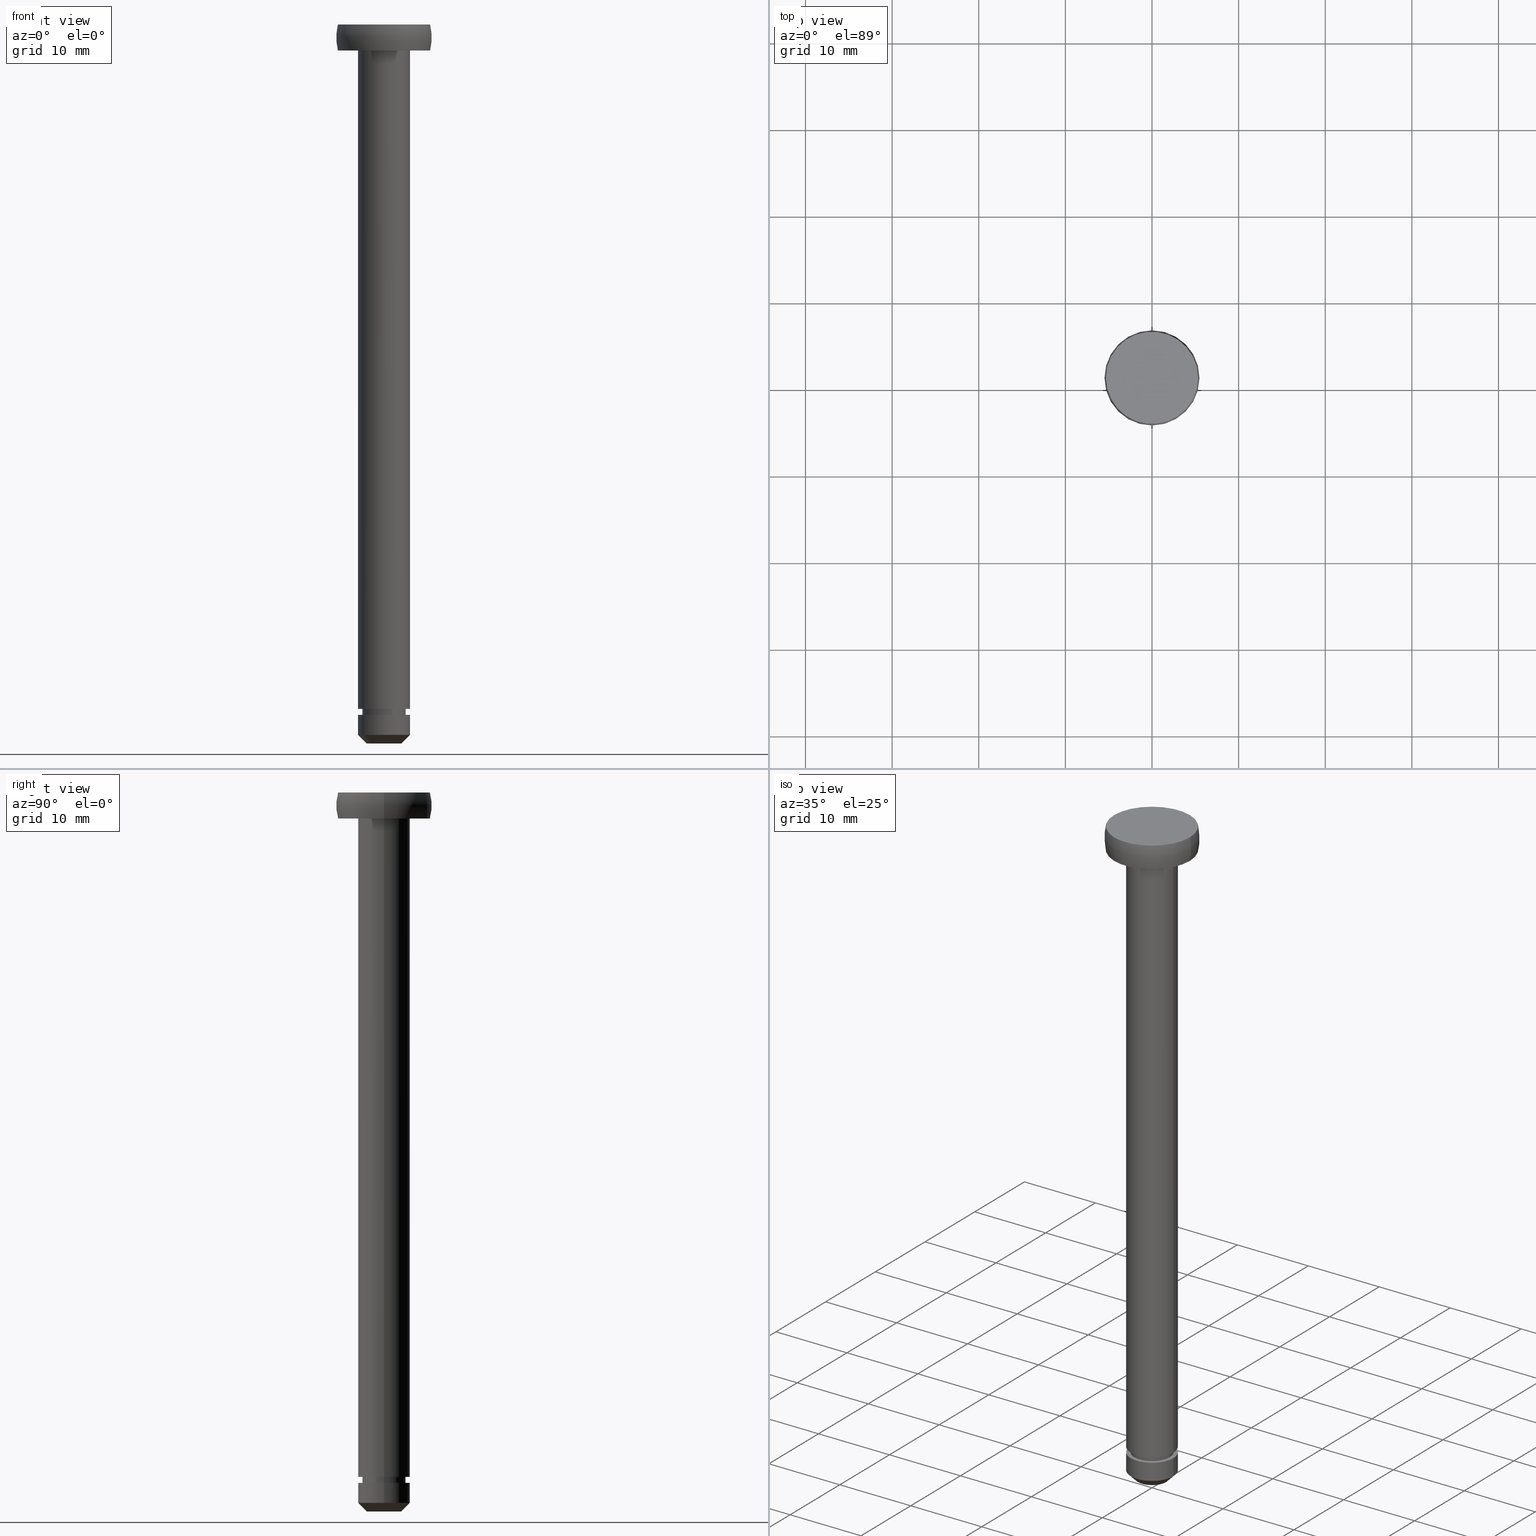
[diagram: canonical four-view strip — front | top / right | iso, engineering-drawing reading convention]
A machine part, canonical four-view strip (front | top / right | iso — engineering-drawing reading convention). The complete STEP part file that produces these views, byte-faithful:
ISO-10303-21;
HEADER;
FILE_DESCRIPTION (( 'STEP AP214' ),
    '1' );
FILE_NAME ('TH_121_6_80.STEP',
    '2016-08-24T01:52:28',
    ( '' ),
    ( '' ),
    'SwSTEP 2.0',
    'SolidWorks 2015',
    '' );
FILE_SCHEMA (( 'AUTOMOTIVE_DESIGN' ));
ENDSEC;

DATA;
#1 = DIRECTION ( 'NONE',  ( 1.000000000000000000, 0.0000000000000000000, 0.0000000000000000000 ) ) ;
#2 = CARTESIAN_POINT ( 'NONE',  ( -5.328427118366801300, 0.0000000000000000000, 83.00000000000000000 ) ) ;
#3 = LINE ( 'NONE', #65, #351 ) ;
#4 = CYLINDRICAL_SURFACE ( 'NONE', #122, 2.500000000000000000 ) ;
#5 = AXIS2_PLACEMENT_3D ( 'NONE', #423, #317, #186 ) ;
#6 = ORIENTED_EDGE ( 'NONE', *, *, #274, .F. ) ;
#7 = FACE_OUTER_BOUND ( 'NONE', #44, .T. ) ;
#8 = AXIS2_PLACEMENT_3D ( 'NONE', #191, #434, #228 ) ;
#9 = EDGE_CURVE ( 'NONE', #392, #364, #277, .T. ) ;
#10 = PRESENTATION_STYLE_ASSIGNMENT (( #363 ) ) ;
#11 = ORIENTED_EDGE ( 'NONE', *, *, #382, .F. ) ;
#12 = COLOUR_RGB ( '',0.7921568627450980000, 0.8196078431372548800, 0.9333333333333333500 ) ;
#13 =( GEOMETRIC_REPRESENTATION_CONTEXT ( 3 ) GLOBAL_UNCERTAINTY_ASSIGNED_CONTEXT ( ( #398 ) ) GLOBAL_UNIT_ASSIGNED_CONTEXT ( ( #159, #198, #79 ) ) REPRESENTATION_CONTEXT ( 'NONE', 'WORKASPACE' ) );
#14 = SURFACE_STYLE_FILL_AREA ( #78 ) ;
#15 = UNCERTAINTY_MEASURE_WITH_UNIT (LENGTH_MEASURE( 1.000000000000000100E-005 ), #323, 'distance_accuracy_value', 'NONE');
#16 = ORIENTED_EDGE ( 'NONE', *, *, #400, .F. ) ;
#17 = ORIENTED_EDGE ( 'NONE', *, *, #282, .T. ) ;
#18 = DIRECTION ( 'NONE',  ( 0.0000000000000000000, 0.0000000000000000000, 1.000000000000000000 ) ) ;
#19 = DIRECTION ( 'NONE',  ( 0.0000000000000000000, 0.0000000000000000000, -1.000000000000000000 ) ) ;
#20 = ADVANCED_FACE ( 'NONE', ( #7 ), #172, .T. ) ;
#21 = VERTEX_POINT ( 'NONE', #397 ) ;
#22 = CIRCLE ( 'NONE', #458, 6.642766791230089400 ) ;
#23 = EDGE_CURVE ( 'NONE', #321, #316, #81, .T. ) ;
#24 = DIRECTION ( 'NONE',  ( 0.0000000000000000000, 0.0000000000000000000, -1.000000000000000000 ) ) ;
#25 = DIRECTION ( 'NONE',  ( -0.0000000000000000000, -0.0000000000000000000, 1.000000000000000000 ) ) ;
#26 = CIRCLE ( 'NONE', #42, 5.328427118366801300 ) ;
#27 = CARTESIAN_POINT ( 'NONE',  ( 0.0000000000000000000, 0.0000000000000000000, 79.99999998195649200 ) ) ;
#28 = DIRECTION ( 'NONE',  ( -1.000000000000000000, -1.224646799147353200E-016, 0.0000000000000000000 ) ) ;
#29 = PRODUCT_CONTEXT ( 'NONE', #291, 'mechanical' ) ;
#30 = VERTEX_POINT ( 'NONE', #120 ) ;
#31 = DIRECTION ( 'NONE',  ( 0.7071067811865456900, 0.0000000000000000000, 0.7071067811865493500 ) ) ;
#32 = EDGE_CURVE ( 'NONE', #91, #162, #205, .T. ) ;
#33 = CARTESIAN_POINT ( 'NONE',  ( 5.328427118366795100, 6.525441214997858000E-016, 79.99999998195649200 ) ) ;
#34 = STYLED_ITEM ( 'NONE', ( #381 ), #437 ) ;
#35 = CARTESIAN_POINT ( 'NONE',  ( -2.500000000000000000, 0.0000000000000000000, 4.000000000000003600 ) ) ;
#36 = DIRECTION ( 'NONE',  ( 0.0000000000000000000, 0.0000000000000000000, -1.000000000000000000 ) ) ;
#37 = CARTESIAN_POINT ( 'NONE',  ( 1.142766791230102100, 0.0000000000000000000, 81.49999999097829600 ) ) ;
#38 = VERTEX_POINT ( 'NONE', #140 ) ;
#39 = DIRECTION ( 'NONE',  ( 0.0000000000000000000, 0.0000000000000000000, -1.000000000000000000 ) ) ;
#40 = LINE ( 'NONE', #215, #304 ) ;
#41 = CARTESIAN_POINT ( 'NONE',  ( 0.0000000000000000000, 0.0000000000000000000, 4.000000000000114600 ) ) ;
#42 = AXIS2_PLACEMENT_3D ( 'NONE', #99, #39, #55 ) ;
#43 = DIRECTION ( 'NONE',  ( -1.000000000000000000, 0.0000000000000000000, -0.0000000000000000000 ) ) ;
#44 = EDGE_LOOP ( 'NONE', ( #386, #388, #340, #204 ) ) ;
#45 = CONTEXT_DEPENDENT_SHAPE_REPRESENTATION ( #71, #128 ) ;
#46 = ORIENTED_EDGE ( 'NONE', *, *, #282, .F. ) ;
#47 = EDGE_LOOP ( 'NONE', ( #96, #242, #376, #188 ) ) ;
#48 = PRODUCT_DEFINITION_SHAPE ( 'NONE', 'NONE',  #278 ) ;
#49 = LINE ( 'NONE', #231, #141 ) ;
#50 =( GEOMETRIC_REPRESENTATION_CONTEXT ( 3 ) GLOBAL_UNCERTAINTY_ASSIGNED_CONTEXT ( ( #417 ) ) GLOBAL_UNIT_ASSIGNED_CONTEXT ( ( #192, #115, #152 ) ) REPRESENTATION_CONTEXT ( 'NONE', 'WORKASPACE' ) );
#51 = SHAPE_DEFINITION_REPRESENTATION ( #275, #266 ) ;
#52 = CIRCLE ( 'NONE', #448, 3.000000000000000000 ) ;
#53 = PRESENTATION_LAYER_ASSIGNMENT (  '', '', ( #34 ) ) ;
#54 = EDGE_LOOP ( 'NONE', ( #443, #442, #306, #365 ) ) ;
#55 = DIRECTION ( 'NONE',  ( -1.000000000000000000, 0.0000000000000000000, 0.0000000000000000000 ) ) ;
#56 = ORIENTED_EDGE ( 'NONE', *, *, #288, .T. ) ;
#57 = VERTEX_POINT ( 'NONE', #216 ) ;
#58 = DIRECTION ( 'NONE',  ( -1.000000000000000000, 0.0000000000000000000, 0.0000000000000000000 ) ) ;
#59 = ADVANCED_FACE ( 'NONE', ( #165, #453 ), #265, .T. ) ;
#60 = DIRECTION ( 'NONE',  ( 0.0000000000000000000, 0.0000000000000000000, -1.000000000000000000 ) ) ;
#61 = CIRCLE ( 'NONE', #143, 3.000000000000000000 ) ;
#62 = PLANE ( 'NONE',  #449 ) ;
#63 = AXIS2_PLACEMENT_3D ( 'NONE', #156, #178, #58 ) ;
#64 = DIRECTION ( 'NONE',  ( 0.0000000000000000000, -0.0000000000000000000, 1.000000000000000000 ) ) ;
#65 = CARTESIAN_POINT ( 'NONE',  ( -3.000000000000000000, 0.0000000000000000000, 83.00000000000000000 ) ) ;
#66 = FACE_OUTER_BOUND ( 'NONE', #355, .T. ) ;
#67 = DIRECTION ( 'NONE',  ( -1.000000000000000000, 0.0000000000000000000, 0.0000000000000000000 ) ) ;
#68 = FILL_AREA_STYLE_COLOUR ( '', #12 ) ;
#69 = VECTOR ( 'NONE', #226, 1000.000000000000000 ) ;
#70 = CONICAL_SURFACE ( 'NONE', #399, 2.000000000000000000, 0.7853981633974457300 ) ;
#71 =( REPRESENTATION_RELATIONSHIP ('NONE','NONE', #266, #410 ) REPRESENTATION_RELATIONSHIP_WITH_TRANSFORMATION ( #329 )SHAPE_REPRESENTATION_RELATIONSHIP( ) );
#72 = EDGE_LOOP ( 'NONE', ( #56, #137 ) ) ;
#73 = VERTEX_POINT ( 'NONE', #346 ) ;
#74 = ORIENTED_EDGE ( 'NONE', *, *, #331, .F. ) ;
#75 = APPLICATION_CONTEXT ( 'automotive_design' ) ;
#76 = DIRECTION ( 'NONE',  ( -1.000000000000000000, 0.0000000000000000000, 0.0000000000000000000 ) ) ;
#77 = CIRCLE ( 'NONE', #305, 2.500000000000000000 ) ;
#78 = FILL_AREA_STYLE ('',( #259 ) ) ;
#79 =( NAMED_UNIT ( * ) SI_UNIT ( $, .STERADIAN. ) SOLID_ANGLE_UNIT ( ) );
#80 = CIRCLE ( 'NONE', #337, 5.328427118366795100 ) ;
#81 = LINE ( 'NONE', #124, #94 ) ;
#82 = EDGE_CURVE ( 'NONE', #316, #255, #154, .T. ) ;
#83 = SURFACE_SIDE_STYLE ('',( #14 ) ) ;
#84 = DIRECTION ( 'NONE',  ( 1.000000000000000000, 0.0000000000000000000, 0.0000000000000000000 ) ) ;
#85 = PLANE ( 'NONE',  #238 ) ;
#86 = CARTESIAN_POINT ( 'NONE',  ( 3.000000000000000000, 0.0000000000000000000, 79.99999998195649200 ) ) ;
#87 = DIRECTION ( 'NONE',  ( -1.000000000000000000, 0.0000000000000000000, 0.0000000000000000000 ) ) ;
#88 = FACE_OUTER_BOUND ( 'NONE', #239, .T. ) ;
#89 = EDGE_LOOP ( 'NONE', ( #342, #168, #108, #135 ) ) ;
#90 = MECHANICAL_DESIGN_GEOMETRIC_PRESENTATION_REPRESENTATION (  '', ( #34 ), #113 ) ;
#91 = VERTEX_POINT ( 'NONE', #183 ) ;
#92 = CIRCLE ( 'NONE', #328, 2.999999999999995600 ) ;
#93 = EDGE_CURVE ( 'NONE', #221, #255, #49, .T. ) ;
#94 = VECTOR ( 'NONE', #218, 1000.000000000000000 ) ;
#95 = AXIS2_PLACEMENT_3D ( 'NONE', #418, #24, #247 ) ;
#96 = ORIENTED_EDGE ( 'NONE', *, *, #32, .F. ) ;
#97 = FACE_OUTER_BOUND ( 'NONE', #89, .T. ) ;
#98 = CARTESIAN_POINT ( 'NONE',  ( -3.000000000000000000, 0.0000000000000000000, 3.299999999999997200 ) ) ;
#99 = CARTESIAN_POINT ( 'NONE',  ( 0.0000000000000000000, 0.0000000000000000000, 83.00000000000000000 ) ) ;
#100 = ADVANCED_FACE ( 'NONE', ( #155 ), #272, .T. ) ;
#101 = DIRECTION ( 'NONE',  ( 1.000000000000000000, 0.0000000000000000000, 0.0000000000000000000 ) ) ;
#102 = EDGE_CURVE ( 'NONE', #162, #57, #409, .T. ) ;
#103 = FACE_OUTER_BOUND ( 'NONE', #110, .T. ) ;
#104 = CARTESIAN_POINT ( 'NONE',  ( 0.0000000000000000000, 0.0000000000000000000, 0.0000000000000000000 ) ) ;
#105 = UNCERTAINTY_MEASURE_WITH_UNIT (LENGTH_MEASURE( 1.000000000000000100E-005 ), #262, 'distance_accuracy_value', 'NONE');
#106 = EDGE_CURVE ( 'NONE', #293, #73, #22, .T. ) ;
#107 = DIRECTION ( 'NONE',  ( 0.0000000000000000000, 0.0000000000000000000, -1.000000000000000000 ) ) ;
#108 = ORIENTED_EDGE ( 'NONE', *, *, #82, .F. ) ;
#109 = DIRECTION ( 'NONE',  ( -1.000000000000000000, 0.0000000000000000000, 0.0000000000000000000 ) ) ;
#110 = EDGE_LOOP ( 'NONE', ( #267, #401, #187, #243 ) ) ;
#111 = DIRECTION ( 'NONE',  ( 0.0000000000000000000, 0.0000000000000000000, -1.000000000000000000 ) ) ;
#112 = DIRECTION ( 'NONE',  ( 0.0000000000000000000, 0.0000000000000000000, -1.000000000000000000 ) ) ;
#113 =( GEOMETRIC_REPRESENTATION_CONTEXT ( 3 ) GLOBAL_UNCERTAINTY_ASSIGNED_CONTEXT ( ( #105 ) ) GLOBAL_UNIT_ASSIGNED_CONTEXT ( ( #262, #345, #121 ) ) REPRESENTATION_CONTEXT ( 'NONE', 'WORKASPACE' ) );
#114 = DIRECTION ( 'NONE',  ( -1.000000000000000000, 0.0000000000000000000, 0.0000000000000000000 ) ) ;
#115 =( NAMED_UNIT ( * ) PLANE_ANGLE_UNIT ( ) SI_UNIT ( $, .RADIAN. ) );
#116 = DIRECTION ( 'NONE',  ( 0.0000000000000000000, 0.0000000000000000000, -1.000000000000000000 ) ) ;
#117 = DIRECTION ( 'NONE',  ( 0.0000000000000000000, 0.0000000000000000000, -1.000000000000000000 ) ) ;
#118 = EDGE_LOOP ( 'NONE', ( #170, #432 ) ) ;
#119 = DIRECTION ( 'NONE',  ( 0.0000000000000000000, -0.0000000000000000000, 1.000000000000000000 ) ) ;
#120 = CARTESIAN_POINT ( 'NONE',  ( 3.000000000000000000, 3.673940397442059900E-016, 4.000000000000114600 ) ) ;
#121 =( NAMED_UNIT ( * ) SI_UNIT ( $, .STERADIAN. ) SOLID_ANGLE_UNIT ( ) );
#122 = AXIS2_PLACEMENT_3D ( 'NONE', #374, #438, #251 ) ;
#123 = COLOUR_RGB ( '',0.7921568627450980000, 0.8196078431372548800, 0.9333333333333333500 ) ;
#124 = CARTESIAN_POINT ( 'NONE',  ( -2.500000000000000000, 0.0000000000000000000, 83.00000000000000000 ) ) ;
#125 = FACE_OUTER_BOUND ( 'NONE', #222, .T. ) ;
#126 = EDGE_LOOP ( 'NONE', ( #219, #130 ) ) ;
#127 = ADVANCED_FACE ( 'NONE', ( #201, #377 ), #261, .T. ) ;
#128 = PRODUCT_DEFINITION_SHAPE ( 'NONE', 'NONE',  #469 ) ;
#129 = EDGE_CURVE ( 'NONE', #73, #270, #80, .T. ) ;
#130 = ORIENTED_EDGE ( 'NONE', *, *, #350, .T. ) ;
#131 = EDGE_CURVE ( 'NONE', #162, #91, #445, .T. ) ;
#132 = DIRECTION ( 'NONE',  ( -1.000000000000000000, 0.0000000000000000000, 0.0000000000000000000 ) ) ;
#133 = AXIS2_PLACEMENT_3D ( 'NONE', #194, #395, #360 ) ;
#134 = DIRECTION ( 'NONE',  ( 0.0000000000000000000, 0.0000000000000000000, -1.000000000000000000 ) ) ;
#135 = ORIENTED_EDGE ( 'NONE', *, *, #23, .F. ) ;
#136 = EDGE_CURVE ( 'NONE', #392, #439, #176, .T. ) ;
#137 = ORIENTED_EDGE ( 'NONE', *, *, #368, .T. ) ;
#138 = ADVANCED_FACE ( 'NONE', ( #271, #66 ), #467, .T. ) ;
#139 = CIRCLE ( 'NONE', #263, 3.000000000000000000 ) ;
#140 = CARTESIAN_POINT ( 'NONE',  ( -3.000000000000000000, 0.0000000000000000000, 4.000000000000114600 ) ) ;
#141 = VECTOR ( 'NONE', #112, 1000.000000000000000 ) ;
#142 = DIRECTION ( 'NONE',  ( 0.0000000000000000000, 0.0000000000000000000, -1.000000000000000000 ) ) ;
#143 = AXIS2_PLACEMENT_3D ( 'NONE', #169, #142, #180 ) ;
#144 = VERTEX_POINT ( 'NONE', #420 ) ;
#145 = VECTOR ( 'NONE', #31, 1000.000000000000000 ) ;
#146 = CARTESIAN_POINT ( 'NONE',  ( 0.0000000000000000000, 0.0000000000000000000, 83.00000000000000000 ) ) ;
#147 = CARTESIAN_POINT ( 'NONE',  ( 0.0000000000000000000, 0.0000000000000000000, 3.299999999999997200 ) ) ;
#148 = DIRECTION ( 'NONE',  ( 0.0000000000000000000, 0.0000000000000000000, -1.000000000000000000 ) ) ;
#149 = DIRECTION ( 'NONE',  ( 0.0000000000000000000, 0.0000000000000000000, -1.000000000000000000 ) ) ;
#150 = CARTESIAN_POINT ( 'NONE',  ( 0.0000000000000000000, 0.0000000000000000000, 83.00000000000000000 ) ) ;
#151 = ORIENTED_EDGE ( 'NONE', *, *, #93, .F. ) ;
#152 =( NAMED_UNIT ( * ) SI_UNIT ( $, .STERADIAN. ) SOLID_ANGLE_UNIT ( ) );
#153 = CARTESIAN_POINT ( 'NONE',  ( 0.0000000000000000000, 0.0000000000000000000, 4.000000000000003600 ) ) ;
#154 = CIRCLE ( 'NONE', #133, 2.500000000000000000 ) ;
#155 = FACE_OUTER_BOUND ( 'NONE', #414, .T. ) ;
#156 = CARTESIAN_POINT ( 'NONE',  ( 0.0000000000000000000, 0.0000000000000000000, 83.00000000000000000 ) ) ;
#157 = DIRECTION ( 'NONE',  ( -1.000000000000000000, 0.0000000000000000000, 0.0000000000000000000 ) ) ;
#158 = EDGE_CURVE ( 'NONE', #21, #270, #447, .T. ) ;
#159 =( LENGTH_UNIT ( ) NAMED_UNIT ( * ) SI_UNIT ( .MILLI., .METRE. ) );
#160 = EDGE_CURVE ( 'NONE', #364, #392, #214, .T. ) ;
#161 = CIRCLE ( 'NONE', #422, 5.328427118366795100 ) ;
#162 = VERTEX_POINT ( 'NONE', #300 ) ;
#163 = ORIENTED_EDGE ( 'NONE', *, *, #303, .T. ) ;
#164 = ORIENTED_EDGE ( 'NONE', *, *, #248, .T. ) ;
#165 = FACE_OUTER_BOUND ( 'NONE', #126, .T. ) ;
#166 = AXIS2_PLACEMENT_3D ( 'NONE', #195, #426, #87 ) ;
#167 = CIRCLE ( 'NONE', #217, 2.500000000000000000 ) ;
#168 = ORIENTED_EDGE ( 'NONE', *, *, #93, .T. ) ;
#169 = CARTESIAN_POINT ( 'NONE',  ( 0.0000000000000000000, 0.0000000000000000000, 79.99999998195649200 ) ) ;
#170 = ORIENTED_EDGE ( 'NONE', *, *, #314, .F. ) ;
#171 = ORIENTED_EDGE ( 'NONE', *, *, #131, .T. ) ;
#172 = TOROIDAL_SURFACE ( 'NONE', #237, -1.142766791230102100, 6.642766791230087600 ) ;
#173 = CARTESIAN_POINT ( 'NONE',  ( -2.500000000000000000, 0.0000000000000000000, 3.299999999999997200 ) ) ;
#174 = ADVANCED_FACE ( 'NONE', ( #264 ), #202, .T. ) ;
#175 = CARTESIAN_POINT ( 'NONE',  ( -2.000000000000000000, 2.449293598294706400E-016, 0.0000000000000000000 ) ) ;
#176 = LINE ( 'NONE', #427, #338 ) ;
#177 = MANIFOLD_SOLID_BREP ( '��]1', #330 ) ;
#178 = DIRECTION ( 'NONE',  ( 0.0000000000000000000, 0.0000000000000000000, -1.000000000000000000 ) ) ;
#179 = DIRECTION ( 'NONE',  ( -1.000000000000000000, 0.0000000000000000000, 0.0000000000000000000 ) ) ;
#180 = DIRECTION ( 'NONE',  ( -1.000000000000000000, 0.0000000000000000000, 0.0000000000000000000 ) ) ;
#181 = DIRECTION ( 'NONE',  ( -1.000000000000000000, 0.0000000000000000000, 0.0000000000000000000 ) ) ;
#182 = DIRECTION ( 'NONE',  ( -1.000000000000000000, 0.0000000000000000000, 0.0000000000000000000 ) ) ;
#183 = CARTESIAN_POINT ( 'NONE',  ( -2.000000000000000000, 3.061616997868380200E-016, 0.0000000000000000000 ) ) ;
#184 =( NAMED_UNIT ( * ) PLANE_ANGLE_UNIT ( ) SI_UNIT ( $, .RADIAN. ) );
#185 = SHAPE_REPRESENTATION_RELATIONSHIP ( 'NONE' , 'NONE' ,  #410, #437 ) ;
#186 = DIRECTION ( 'NONE',  ( -1.000000000000000000, 0.0000000000000000000, 0.0000000000000000000 ) ) ;
#187 = ORIENTED_EDGE ( 'NONE', *, *, #136, .T. ) ;
#188 = ORIENTED_EDGE ( 'NONE', *, *, #102, .F. ) ;
#189 = AXIS2_PLACEMENT_3D ( 'NONE', #289, #357, #101 ) ;
#190 = CARTESIAN_POINT ( 'NONE',  ( 0.0000000000000000000, 0.0000000000000000000, 0.0000000000000000000 ) ) ;
#191 = CARTESIAN_POINT ( 'NONE',  ( 0.0000000000000000000, 0.0000000000000000000, 0.0000000000000000000 ) ) ;
#192 =( LENGTH_UNIT ( ) NAMED_UNIT ( * ) SI_UNIT ( .MILLI., .METRE. ) );
#193 = CARTESIAN_POINT ( 'NONE',  ( 5.328427118366801300, 0.0000000000000000000, 83.00000000000000000 ) ) ;
#194 = CARTESIAN_POINT ( 'NONE',  ( 0.0000000000000000000, 0.0000000000000000000, 3.299999999999997200 ) ) ;
#195 = CARTESIAN_POINT ( 'NONE',  ( 0.0000000000000000000, 0.0000000000000000000, 83.00000000000000000 ) ) ;
#196 = DIRECTION ( 'NONE',  ( 0.0000000000000000000, 0.0000000000000000000, -1.000000000000000000 ) ) ;
#197 = CYLINDRICAL_SURFACE ( 'NONE', #402, 2.500000000000000000 ) ;
#198 =( NAMED_UNIT ( * ) PLANE_ANGLE_UNIT ( ) SI_UNIT ( $, .RADIAN. ) );
#199 = FACE_OUTER_BOUND ( 'NONE', #311, .T. ) ;
#200 = ORIENTED_EDGE ( 'NONE', *, *, #136, .F. ) ;
#201 = FACE_OUTER_BOUND ( 'NONE', #72, .T. ) ;
#202 = CONICAL_SURFACE ( 'NONE', #378, 2.000000000000000000, 0.7853981633974457300 ) ;
#203 = ORIENTED_EDGE ( 'NONE', *, *, #102, .T. ) ;
#204 = ORIENTED_EDGE ( 'NONE', *, *, #350, .F. ) ;
#205 = CIRCLE ( 'NONE', #348, 2.000000000000000000 ) ;
#206 = CARTESIAN_POINT ( 'NONE',  ( 2.500000000000000000, 3.061616997868383100E-016, 3.299999999999997200 ) ) ;
#207 = AXIS2_PLACEMENT_3D ( 'NONE', #230, #18, #372 ) ;
#208 = AXIS2_PLACEMENT_3D ( 'NONE', #86, #60, #43 ) ;
#209 = CARTESIAN_POINT ( 'NONE',  ( -2.999999999999995600, 3.673940397442054400E-016, 1.000000000000000900 ) ) ;
#210 = ADVANCED_FACE ( 'NONE', ( #103 ), #353, .T. ) ;
#211 = DIRECTION ( 'NONE',  ( -1.000000000000000000, 0.0000000000000000000, 0.0000000000000000000 ) ) ;
#212 = ORIENTED_EDGE ( 'NONE', *, *, #368, .F. ) ;
#213 = ADVANCED_FACE ( 'NONE', ( #97 ), #4, .T. ) ;
#214 = CIRCLE ( 'NONE', #359, 3.000000000000000000 ) ;
#215 = CARTESIAN_POINT ( 'NONE',  ( 2.999999999999997800, 3.673940397442057400E-016, 83.00000000000000000 ) ) ;
#216 = CARTESIAN_POINT ( 'NONE',  ( 2.999999999999995600, 0.0000000000000000000, 1.000000000000000900 ) ) ;
#217 = AXIS2_PLACEMENT_3D ( 'NONE', #153, #394, #435 ) ;
#218 = DIRECTION ( 'NONE',  ( 0.0000000000000000000, 0.0000000000000000000, -1.000000000000000000 ) ) ;
#219 = ORIENTED_EDGE ( 'NONE', *, *, #129, .T. ) ;
#220 = CARTESIAN_POINT ( 'NONE',  ( 0.0000000000000000000, 0.0000000000000000000, 81.49999999097829600 ) ) ;
#221 = VERTEX_POINT ( 'NONE', #294 ) ;
#222 = EDGE_LOOP ( 'NONE', ( #171, #256 ) ) ;
#223 = DIRECTION ( 'NONE',  ( -1.000000000000000000, 0.0000000000000000000, 0.0000000000000000000 ) ) ;
#224 = DIRECTION ( 'NONE',  ( -0.7071067811865456900, 8.659560562354910700E-017, 0.7071067811865493500 ) ) ;
#225 = DIRECTION ( 'NONE',  ( -1.000000000000000000, 0.0000000000000000000, 0.0000000000000000000 ) ) ;
#226 = DIRECTION ( 'NONE',  ( 0.0000000000000000000, 0.0000000000000000000, -1.000000000000000000 ) ) ;
#227 = DIRECTION ( 'NONE',  ( 0.0000000000000000000, 0.0000000000000000000, -1.000000000000000000 ) ) ;
#228 = DIRECTION ( 'NONE',  ( 1.000000000000000000, 0.0000000000000000000, 0.0000000000000000000 ) ) ;
#229 = CARTESIAN_POINT ( 'NONE',  ( 0.0000000000000000000, 0.0000000000000000000, 3.299999999999997200 ) ) ;
#230 = CARTESIAN_POINT ( 'NONE',  ( 0.0000000000000000000, 0.0000000000000000000, 0.0000000000000000000 ) ) ;
#231 = CARTESIAN_POINT ( 'NONE',  ( 2.500000000000000000, 3.061616997868383100E-016, 83.00000000000000000 ) ) ;
#232 = DIRECTION ( 'NONE',  ( 0.0000000000000000000, 0.0000000000000000000, -1.000000000000000000 ) ) ;
#233 = ORIENTED_EDGE ( 'NONE', *, *, #106, .F. ) ;
#234 = EDGE_CURVE ( 'NONE', #293, #21, #26, .T. ) ;
#235 =( GEOMETRIC_REPRESENTATION_CONTEXT ( 3 ) GLOBAL_UNCERTAINTY_ASSIGNED_CONTEXT ( ( #15 ) ) GLOBAL_UNIT_ASSIGNED_CONTEXT ( ( #323, #184, #286 ) ) REPRESENTATION_CONTEXT ( 'NONE', 'WORKASPACE' ) );
#236 = ORIENTED_EDGE ( 'NONE', *, *, #158, .T. ) ;
#237 = AXIS2_PLACEMENT_3D ( 'NONE', #385, #196, #362 ) ;
#238 = AXIS2_PLACEMENT_3D ( 'NONE', #193, #119, #307 ) ;
#239 = EDGE_LOOP ( 'NONE', ( #151, #17, #433, #268 ) ) ;
#240 = CARTESIAN_POINT ( 'NONE',  ( 3.000000000000000000, 3.673940397442059900E-016, 3.299999999999997200 ) ) ;
#241 = ORIENTED_EDGE ( 'NONE', *, *, #308, .F. ) ;
#242 = ORIENTED_EDGE ( 'NONE', *, *, #400, .T. ) ;
#243 = ORIENTED_EDGE ( 'NONE', *, *, #371, .F. ) ;
#244 = CARTESIAN_POINT ( 'NONE',  ( 0.0000000000000000000, 0.0000000000000000000, 3.299999999999997200 ) ) ;
#245 = ADVANCED_FACE ( 'NONE', ( #383 ), #406, .T. ) ;
#246 = AXIS2_PLACEMENT_3D ( 'NONE', #220, #287, #76 ) ;
#247 = DIRECTION ( 'NONE',  ( -1.000000000000000000, 0.0000000000000000000, 0.0000000000000000000 ) ) ;
#248 = EDGE_CURVE ( 'NONE', #144, #332, #61, .T. ) ;
#249 = DIRECTION ( 'NONE',  ( -1.224646799147353200E-016, 1.000000000000000000, 0.0000000000000000000 ) ) ;
#250 = CARTESIAN_POINT ( 'NONE',  ( 2.000000000000000000, 0.0000000000000000000, 0.0000000000000000000 ) ) ;
#251 = DIRECTION ( 'NONE',  ( -1.000000000000000000, 0.0000000000000000000, 0.0000000000000000000 ) ) ;
#252 = DIRECTION ( 'NONE',  ( 0.0000000000000000000, 0.0000000000000000000, -1.000000000000000000 ) ) ;
#253 = ORIENTED_EDGE ( 'NONE', *, *, #160, .F. ) ;
#254 = AXIS2_PLACEMENT_3D ( 'NONE', #190, #396, #1 ) ;
#255 = VERTEX_POINT ( 'NONE', #206 ) ;
#256 = ORIENTED_EDGE ( 'NONE', *, *, #32, .T. ) ;
#257 = DIRECTION ( 'NONE',  ( -1.000000000000000000, 0.0000000000000000000, -0.0000000000000000000 ) ) ;
#258 = DIRECTION ( 'NONE',  ( 0.0000000000000000000, 0.0000000000000000000, -1.000000000000000000 ) ) ;
#259 = FILL_AREA_STYLE_COLOUR ( '', #123 ) ;
#260 = EDGE_CURVE ( 'NONE', #332, #38, #3, .T. ) ;
#261 = PLANE ( 'NONE',  #295 ) ;
#262 =( LENGTH_UNIT ( ) NAMED_UNIT ( * ) SI_UNIT ( .MILLI., .METRE. ) );
#263 = AXIS2_PLACEMENT_3D ( 'NONE', #41, #429, #419 ) ;
#264 = FACE_OUTER_BOUND ( 'NONE', #47, .T. ) ;
#265 = PLANE ( 'NONE',  #208 ) ;
#266 = SHAPE_REPRESENTATION ( 'TH_121_6_80', ( #254, #207 ), #235 ) ;
#267 = ORIENTED_EDGE ( 'NONE', *, *, #335, .F. ) ;
#268 = ORIENTED_EDGE ( 'NONE', *, *, #303, .F. ) ;
#269 = ORIENTED_EDGE ( 'NONE', *, *, #9, .T. ) ;
#270 = VERTEX_POINT ( 'NONE', #33 ) ;
#271 = FACE_BOUND ( 'NONE', #276, .T. ) ;
#272 = TOROIDAL_SURFACE ( 'NONE', #246, -1.142766791230102100, 6.642766791230087600 ) ;
#273 = AXIS2_PLACEMENT_3D ( 'NONE', #284, #354, #223 ) ;
#274 = EDGE_CURVE ( 'NONE', #21, #293, #440, .T. ) ;
#275 = PRODUCT_DEFINITION_SHAPE ( 'NONE', 'NONE',  #319 ) ;
#276 = EDGE_LOOP ( 'NONE', ( #327, #163 ) ) ;
#277 = CIRCLE ( 'NONE', #421, 3.000000000000000000 ) ;
#278 = PRODUCT_DEFINITION ( 'UNKNOWN', '', #391, #333 ) ;
#279 = APPLICATION_CONTEXT ( 'automotive_design' ) ;
#280 = ADVANCED_FACE ( 'NONE', ( #199 ), #85, .T. ) ;
#281 = APPLICATION_PROTOCOL_DEFINITION ( 'draft international standard', 'automotive_design', 1998, #279 ) ;
#282 = EDGE_CURVE ( 'NONE', #221, #321, #167, .T. ) ;
#283 = AXIS2_PLACEMENT_3D ( 'NONE', #244, #415, #132 ) ;
#284 = CARTESIAN_POINT ( 'NONE',  ( 0.0000000000000000000, 0.0000000000000000000, 0.0000000000000000000 ) ) ;
#285 = DIRECTION ( 'NONE',  ( 0.0000000000000000000, 0.0000000000000000000, -1.000000000000000000 ) ) ;
#286 =( NAMED_UNIT ( * ) SI_UNIT ( $, .STERADIAN. ) SOLID_ANGLE_UNIT ( ) );
#287 = DIRECTION ( 'NONE',  ( 0.0000000000000000000, 0.0000000000000000000, -1.000000000000000000 ) ) ;
#288 = EDGE_CURVE ( 'NONE', #38, #30, #139, .T. ) ;
#289 = CARTESIAN_POINT ( 'NONE',  ( 0.0000000000000000000, 0.0000000000000000000, 0.0000000000000000000 ) ) ;
#290 = DIRECTION ( 'NONE',  ( -0.0000000000000000000, -1.000000000000000000, -0.0000000000000000000 ) ) ;
#291 = APPLICATION_CONTEXT ( 'automotive_design' ) ;
#292 = SURFACE_STYLE_FILL_AREA ( #380 ) ;
#293 = VERTEX_POINT ( 'NONE', #2 ) ;
#294 = CARTESIAN_POINT ( 'NONE',  ( 2.500000000000000000, 3.061616997868383100E-016, 4.000000000000003600 ) ) ;
#295 = AXIS2_PLACEMENT_3D ( 'NONE', #356, #258, #430 ) ;
#296 = LINE ( 'NONE', #175, #358 ) ;
#297 = PRODUCT_DEFINITION_CONTEXT ( 'detailed design', #279, 'design' ) ;
#298 = APPLICATION_PROTOCOL_DEFINITION ( 'draft international standard', 'automotive_design', 1998, #75 ) ;
#299 = DIRECTION ( 'NONE',  ( -1.000000000000000000, 0.0000000000000000000, 0.0000000000000000000 ) ) ;
#300 = CARTESIAN_POINT ( 'NONE',  ( 2.000000000000000000, 0.0000000000000000000, 0.0000000000000000000 ) ) ;
#301 = ORIENTED_EDGE ( 'NONE', *, *, #260, .T. ) ;
#302 = ORIENTED_EDGE ( 'NONE', *, *, #371, .T. ) ;
#303 = EDGE_CURVE ( 'NONE', #255, #316, #444, .T. ) ;
#304 = VECTOR ( 'NONE', #111, 1000.000000000000000 ) ;
#305 = AXIS2_PLACEMENT_3D ( 'NONE', #361, #232, #299 ) ;
#306 = ORIENTED_EDGE ( 'NONE', *, *, #288, .F. ) ;
#307 = DIRECTION ( 'NONE',  ( 1.000000000000000000, 0.0000000000000000000, 0.0000000000000000000 ) ) ;
#308 = EDGE_CURVE ( 'NONE', #321, #221, #77, .T. ) ;
#309 = DIRECTION ( 'NONE',  ( 1.000000000000000000, 0.0000000000000000000, 0.0000000000000000000 ) ) ;
#310 = ADVANCED_FACE ( 'NONE', ( #322 ), #336, .T. ) ;
#311 = EDGE_LOOP ( 'NONE', ( #408, #6 ) ) ;
#312 = AXIS2_PLACEMENT_3D ( 'NONE', #457, #249, #28 ) ;
#313 = DIRECTION ( 'NONE',  ( 1.000000000000000000, 0.0000000000000000000, 0.0000000000000000000 ) ) ;
#314 = EDGE_CURVE ( 'NONE', #332, #144, #369, .T. ) ;
#315 = DIRECTION ( 'NONE',  ( 0.0000000000000000000, 0.0000000000000000000, -1.000000000000000000 ) ) ;
#316 = VERTEX_POINT ( 'NONE', #173 ) ;
#317 = DIRECTION ( 'NONE',  ( 0.0000000000000000000, 0.0000000000000000000, -1.000000000000000000 ) ) ;
#318 = CARTESIAN_POINT ( 'NONE',  ( 0.0000000000000000000, 0.0000000000000000000, 79.99999998195649200 ) ) ;
#319 = PRODUCT_DEFINITION ( 'UNKNOWN', '', #343, #297 ) ;
#320 = CARTESIAN_POINT ( 'NONE',  ( 0.0000000000000000000, 0.0000000000000000000, 1.000000000000000900 ) ) ;
#321 = VERTEX_POINT ( 'NONE', #35 ) ;
#322 = FACE_OUTER_BOUND ( 'NONE', #407, .T. ) ;
#323 =( LENGTH_UNIT ( ) NAMED_UNIT ( * ) SI_UNIT ( .MILLI., .METRE. ) );
#324 = SURFACE_STYLE_USAGE ( .BOTH. , #83 ) ;
#325 = EDGE_LOOP ( 'NONE', ( #16, #450, #203, #302 ) ) ;
#326 = CARTESIAN_POINT ( 'NONE',  ( 0.0000000000000000000, 0.0000000000000000000, 79.99999998195649200 ) ) ;
#327 = ORIENTED_EDGE ( 'NONE', *, *, #82, .T. ) ;
#328 = AXIS2_PLACEMENT_3D ( 'NONE', #320, #116, #109 ) ;
#329 = ITEM_DEFINED_TRANSFORMATION ( 'NONE', 'NONE', #207,  #8 ) ;
#330 = CLOSED_SHELL ( 'NONE', ( #245, #213, #416, #174, #100, #20, #280, #452, #344, #210, #138, #375, #127, #310, #59 ) ) ;
#331 = EDGE_CURVE ( 'NONE', #439, #57, #92, .T. ) ;
#332 = VERTEX_POINT ( 'NONE', #373 ) ;
#333 = PRODUCT_DEFINITION_CONTEXT ( 'detailed design', #464, 'design' ) ;
#334 = AXIS2_PLACEMENT_3D ( 'NONE', #465, #64, #84 ) ;
#335 = EDGE_CURVE ( 'NONE', #364, #57, #40, .T. ) ;
#336 = CYLINDRICAL_SURFACE ( 'NONE', #370, 3.000000000000000000 ) ;
#337 = AXIS2_PLACEMENT_3D ( 'NONE', #318, #36, #225 ) ;
#338 = VECTOR ( 'NONE', #227, 1000.000000000000000 ) ;
#339 = APPLICATION_PROTOCOL_DEFINITION ( 'draft international standard', 'automotive_design', 1998, #291 ) ;
#340 = ORIENTED_EDGE ( 'NONE', *, *, #106, .T. ) ;
#341 = ORIENTED_EDGE ( 'NONE', *, *, #234, .T. ) ;
#342 = ORIENTED_EDGE ( 'NONE', *, *, #308, .T. ) ;
#343 = PRODUCT_DEFINITION_FORMATION_WITH_SPECIFIED_SOURCE ( 'ANY', '', #441, .NOT_KNOWN. ) ;
#344 = ADVANCED_FACE ( 'NONE', ( #461 ), #70, .T. ) ;
#345 =( NAMED_UNIT ( * ) PLANE_ANGLE_UNIT ( ) SI_UNIT ( $, .RADIAN. ) );
#346 = CARTESIAN_POINT ( 'NONE',  ( -5.328427118366795100, 0.0000000000000000000, 79.99999998195649200 ) ) ;
#347 = SURFACE_SIDE_STYLE ('',( #292 ) ) ;
#348 = AXIS2_PLACEMENT_3D ( 'NONE', #462, #379, #179 ) ;
#349 = AXIS2_PLACEMENT_3D ( 'NONE', #326, #19, #211 ) ;
#350 = EDGE_CURVE ( 'NONE', #270, #73, #161, .T. ) ;
#351 = VECTOR ( 'NONE', #285, 1000.000000000000000 ) ;
#352 = CIRCLE ( 'NONE', #5, 2.999999999999995600 ) ;
#353 = CYLINDRICAL_SURFACE ( 'NONE', #95, 2.999999999999997800 ) ;
#354 = DIRECTION ( 'NONE',  ( 0.0000000000000000000, 0.0000000000000000000, -1.000000000000000000 ) ) ;
#355 = EDGE_LOOP ( 'NONE', ( #389, #253 ) ) ;
#356 = CARTESIAN_POINT ( 'NONE',  ( 2.500000000000000000, 0.0000000000000000000, 4.000000000000057700 ) ) ;
#357 = DIRECTION ( 'NONE',  ( 0.0000000000000000000, 0.0000000000000000000, 1.000000000000000000 ) ) ;
#358 = VECTOR ( 'NONE', #224, 1000.000000000000000 ) ;
#359 = AXIS2_PLACEMENT_3D ( 'NONE', #229, #117, #181 ) ;
#360 = DIRECTION ( 'NONE',  ( -1.000000000000000000, 0.0000000000000000000, 0.0000000000000000000 ) ) ;
#361 = CARTESIAN_POINT ( 'NONE',  ( 0.0000000000000000000, 0.0000000000000000000, 4.000000000000003600 ) ) ;
#362 = DIRECTION ( 'NONE',  ( -1.000000000000000000, 0.0000000000000000000, 0.0000000000000000000 ) ) ;
#363 = SURFACE_STYLE_USAGE ( .BOTH. , #347 ) ;
#364 = VERTEX_POINT ( 'NONE', #240 ) ;
#365 = ORIENTED_EDGE ( 'NONE', *, *, #260, .F. ) ;
#366 = FACE_OUTER_BOUND ( 'NONE', #431, .T. ) ;
#367 = PRODUCT_RELATED_PRODUCT_CATEGORY ( 'part', '', ( #441 ) ) ;
#368 = EDGE_CURVE ( 'NONE', #30, #38, #52, .T. ) ;
#369 = CIRCLE ( 'NONE', #349, 3.000000000000000000 ) ;
#370 = AXIS2_PLACEMENT_3D ( 'NONE', #451, #315, #454 ) ;
#371 = EDGE_CURVE ( 'NONE', #57, #439, #352, .T. ) ;
#372 = DIRECTION ( 'NONE',  ( 1.000000000000000000, 0.0000000000000000000, 0.0000000000000000000 ) ) ;
#373 = CARTESIAN_POINT ( 'NONE',  ( -3.000000000000000000, 0.0000000000000000000, 79.99999998195649200 ) ) ;
#374 = CARTESIAN_POINT ( 'NONE',  ( 0.0000000000000000000, 0.0000000000000000000, 83.00000000000000000 ) ) ;
#375 = ADVANCED_FACE ( 'NONE', ( #88 ), #197, .T. ) ;
#376 = ORIENTED_EDGE ( 'NONE', *, *, #331, .T. ) ;
#377 = FACE_BOUND ( 'NONE', #413, .T. ) ;
#378 = AXIS2_PLACEMENT_3D ( 'NONE', #460, #25, #313 ) ;
#379 = DIRECTION ( 'NONE',  ( 0.0000000000000000000, 0.0000000000000000000, -1.000000000000000000 ) ) ;
#380 = FILL_AREA_STYLE ('',( #68 ) ) ;
#381 = PRESENTATION_STYLE_ASSIGNMENT (( #324 ) ) ;
#382 = EDGE_CURVE ( 'NONE', #144, #30, #446, .T. ) ;
#383 = FACE_OUTER_BOUND ( 'NONE', #54, .T. ) ;
#384 = DIRECTION ( 'NONE',  ( 0.0000000000000000000, 0.0000000000000000000, -1.000000000000000000 ) ) ;
#385 = CARTESIAN_POINT ( 'NONE',  ( 0.0000000000000000000, 0.0000000000000000000, 81.49999999097829600 ) ) ;
#386 = ORIENTED_EDGE ( 'NONE', *, *, #158, .F. ) ;
#387 = APPLICATION_PROTOCOL_DEFINITION ( 'draft international standard', 'automotive_design', 1998, #464 ) ;
#388 = ORIENTED_EDGE ( 'NONE', *, *, #274, .T. ) ;
#389 = ORIENTED_EDGE ( 'NONE', *, *, #9, .F. ) ;
#390 = CARTESIAN_POINT ( 'NONE',  ( 0.0000000000000000000, 0.0000000000000000000, 0.0000000000000000000 ) ) ;
#391 = PRODUCT_DEFINITION_FORMATION_WITH_SPECIFIED_SOURCE ( 'ANY', '', #403, .NOT_KNOWN. ) ;
#392 = VERTEX_POINT ( 'NONE', #98 ) ;
#393 = DIRECTION ( 'NONE',  ( -0.0000000000000000000, -0.0000000000000000000, 1.000000000000000000 ) ) ;
#394 = DIRECTION ( 'NONE',  ( 0.0000000000000000000, 0.0000000000000000000, -1.000000000000000000 ) ) ;
#395 = DIRECTION ( 'NONE',  ( 0.0000000000000000000, 0.0000000000000000000, -1.000000000000000000 ) ) ;
#396 = DIRECTION ( 'NONE',  ( 0.0000000000000000000, 0.0000000000000000000, 1.000000000000000000 ) ) ;
#397 = CARTESIAN_POINT ( 'NONE',  ( 5.328427118366801300, 6.525441214997862000E-016, 83.00000000000000000 ) ) ;
#398 = UNCERTAINTY_MEASURE_WITH_UNIT (LENGTH_MEASURE( 1.000000000000000100E-005 ), #159, 'distance_accuracy_value', 'NONE');
#399 = AXIS2_PLACEMENT_3D ( 'NONE', #104, #393, #309 ) ;
#400 = EDGE_CURVE ( 'NONE', #91, #439, #296, .T. ) ;
#401 = ORIENTED_EDGE ( 'NONE', *, *, #160, .T. ) ;
#402 = AXIS2_PLACEMENT_3D ( 'NONE', #146, #134, #114 ) ;
#403 = PRODUCT ( 'shaft', 'shaft', '', ( #29 ) ) ;
#404 = ORIENTED_EDGE ( 'NONE', *, *, #129, .F. ) ;
#405 = STYLED_ITEM ( 'NONE', ( #10 ), #177 ) ;
#406 = CYLINDRICAL_SURFACE ( 'NONE', #166, 3.000000000000000000 ) ;
#407 = EDGE_LOOP ( 'NONE', ( #11, #164, #301, #212 ) ) ;
#408 = ORIENTED_EDGE ( 'NONE', *, *, #234, .F. ) ;
#409 = LINE ( 'NONE', #250, #145 ) ;
#410 = SHAPE_REPRESENTATION ( 'shaft', ( #8 ), #50 ) ;
#411 = PRODUCT_CONTEXT ( 'NONE', #75, 'mechanical' ) ;
#412 = PRODUCT_RELATED_PRODUCT_CATEGORY ( 'part', '', ( #403 ) ) ;
#413 = EDGE_LOOP ( 'NONE', ( #241, #46 ) ) ;
#414 = EDGE_LOOP ( 'NONE', ( #341, #236, #404, #233 ) ) ;
#415 = DIRECTION ( 'NONE',  ( 0.0000000000000000000, 0.0000000000000000000, -1.000000000000000000 ) ) ;
#416 = ADVANCED_FACE ( 'NONE', ( #366 ), #463, .T. ) ;
#417 = UNCERTAINTY_MEASURE_WITH_UNIT (LENGTH_MEASURE( 1.000000000000000100E-005 ), #192, 'distance_accuracy_value', 'NONE');
#418 = CARTESIAN_POINT ( 'NONE',  ( 0.0000000000000000000, 0.0000000000000000000, 83.00000000000000000 ) ) ;
#419 = DIRECTION ( 'NONE',  ( -1.000000000000000000, 0.0000000000000000000, 0.0000000000000000000 ) ) ;
#420 = CARTESIAN_POINT ( 'NONE',  ( 3.000000000000000000, 3.673940397442059900E-016, 79.99999998195649200 ) ) ;
#421 = AXIS2_PLACEMENT_3D ( 'NONE', #147, #107, #157 ) ;
#422 = AXIS2_PLACEMENT_3D ( 'NONE', #27, #384, #182 ) ;
#423 = CARTESIAN_POINT ( 'NONE',  ( 0.0000000000000000000, 0.0000000000000000000, 1.000000000000000900 ) ) ;
#424 = SHAPE_DEFINITION_REPRESENTATION ( #48, #410 ) ;
#425 = AXIS2_PLACEMENT_3D ( 'NONE', #150, #252, #455 ) ;
#426 = DIRECTION ( 'NONE',  ( 0.0000000000000000000, 0.0000000000000000000, -1.000000000000000000 ) ) ;
#427 = CARTESIAN_POINT ( 'NONE',  ( -2.999999999999997800, 0.0000000000000000000, 83.00000000000000000 ) ) ;
#428 = ORIENTED_EDGE ( 'NONE', *, *, #335, .T. ) ;
#429 = DIRECTION ( 'NONE',  ( 0.0000000000000000000, 0.0000000000000000000, -1.000000000000000000 ) ) ;
#430 = DIRECTION ( 'NONE',  ( -1.000000000000000000, 0.0000000000000000000, -0.0000000000000000000 ) ) ;
#431 = EDGE_LOOP ( 'NONE', ( #269, #428, #74, #200 ) ) ;
#432 = ORIENTED_EDGE ( 'NONE', *, *, #248, .F. ) ;
#433 = ORIENTED_EDGE ( 'NONE', *, *, #23, .T. ) ;
#434 = DIRECTION ( 'NONE',  ( 0.0000000000000000000, 0.0000000000000000000, 1.000000000000000000 ) ) ;
#435 = DIRECTION ( 'NONE',  ( -1.000000000000000000, 0.0000000000000000000, 0.0000000000000000000 ) ) ;
#436 = PRESENTATION_LAYER_ASSIGNMENT (  '', '', ( #405 ) ) ;
#437 = ADVANCED_BREP_SHAPE_REPRESENTATION ( '', ( #177, #8 ), #50 ) ;
#438 = DIRECTION ( 'NONE',  ( 0.0000000000000000000, 0.0000000000000000000, -1.000000000000000000 ) ) ;
#439 = VERTEX_POINT ( 'NONE', #209 ) ;
#440 = CIRCLE ( 'NONE', #63, 5.328427118366801300 ) ;
#441 = PRODUCT ( 'TH_121_6_80', 'TH_121_6_80', '', ( #411 ) ) ;
#442 = ORIENTED_EDGE ( 'NONE', *, *, #382, .T. ) ;
#443 = ORIENTED_EDGE ( 'NONE', *, *, #314, .T. ) ;
#444 = CIRCLE ( 'NONE', #283, 2.500000000000000000 ) ;
#445 = CIRCLE ( 'NONE', #273, 2.000000000000000000 ) ;
#446 = LINE ( 'NONE', #459, #69 ) ;
#447 = CIRCLE ( 'NONE', #312, 6.642766791230087600 ) ;
#448 = AXIS2_PLACEMENT_3D ( 'NONE', #466, #149, #67 ) ;
#449 = AXIS2_PLACEMENT_3D ( 'NONE', #390, #148, #257 ) ;
#450 = ORIENTED_EDGE ( 'NONE', *, *, #131, .F. ) ;
#451 = CARTESIAN_POINT ( 'NONE',  ( 0.0000000000000000000, 0.0000000000000000000, 83.00000000000000000 ) ) ;
#452 = ADVANCED_FACE ( 'NONE', ( #125 ), #62, .T. ) ;
#453 = FACE_BOUND ( 'NONE', #118, .T. ) ;
#454 = DIRECTION ( 'NONE',  ( -1.000000000000000000, 0.0000000000000000000, 0.0000000000000000000 ) ) ;
#455 = DIRECTION ( 'NONE',  ( -1.000000000000000000, 0.0000000000000000000, 0.0000000000000000000 ) ) ;
#456 = MECHANICAL_DESIGN_GEOMETRIC_PRESENTATION_REPRESENTATION (  '', ( #405 ), #13 ) ;
#457 = CARTESIAN_POINT ( 'NONE',  ( -1.142766791230102100, -1.399485693051835900E-016, 81.49999999097829600 ) ) ;
#458 = AXIS2_PLACEMENT_3D ( 'NONE', #37, #290, #468 ) ;
#459 = CARTESIAN_POINT ( 'NONE',  ( 3.000000000000000000, 3.673940397442059900E-016, 83.00000000000000000 ) ) ;
#460 = CARTESIAN_POINT ( 'NONE',  ( 0.0000000000000000000, 0.0000000000000000000, 0.0000000000000000000 ) ) ;
#461 = FACE_OUTER_BOUND ( 'NONE', #325, .T. ) ;
#462 = CARTESIAN_POINT ( 'NONE',  ( 0.0000000000000000000, 0.0000000000000000000, 0.0000000000000000000 ) ) ;
#463 = CYLINDRICAL_SURFACE ( 'NONE', #425, 2.999999999999997800 ) ;
#464 = APPLICATION_CONTEXT ( 'automotive_design' ) ;
#465 = CARTESIAN_POINT ( 'NONE',  ( 3.000000000000000000, 0.0000000000000000000, 3.299999999999999800 ) ) ;
#466 = CARTESIAN_POINT ( 'NONE',  ( 0.0000000000000000000, 0.0000000000000000000, 4.000000000000114600 ) ) ;
#467 = PLANE ( 'NONE',  #334 ) ;
#468 = DIRECTION ( 'NONE',  ( 0.0000000000000000000, 0.0000000000000000000, -1.000000000000000000 ) ) ;
#469 = NEXT_ASSEMBLY_USAGE_OCCURRENCE ( 'NAUO1', ' ', ' ', #319, #278, $ ) ;
ENDSEC;
END-ISO-10303-21;
